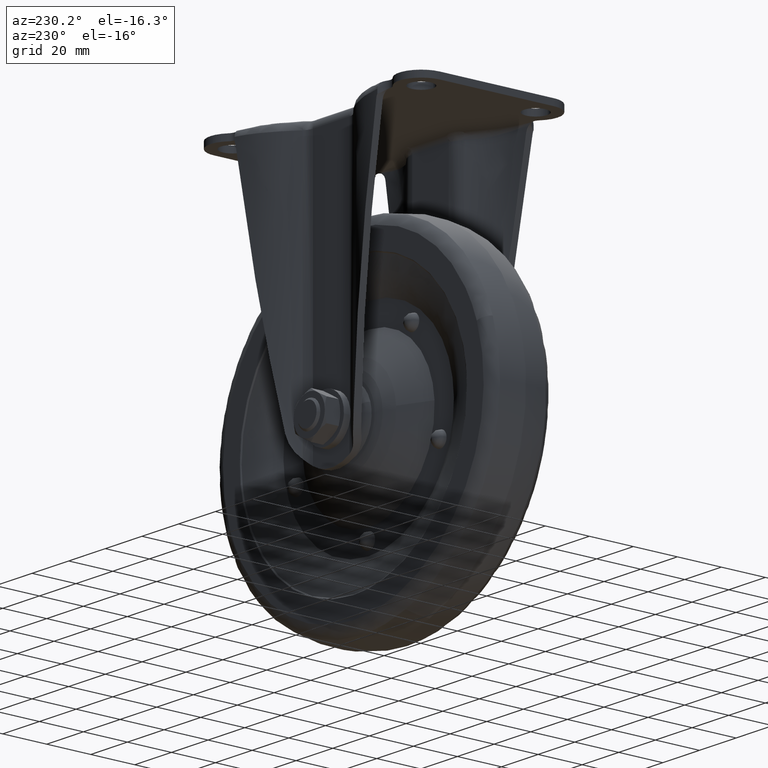
[diagram: clean part render]
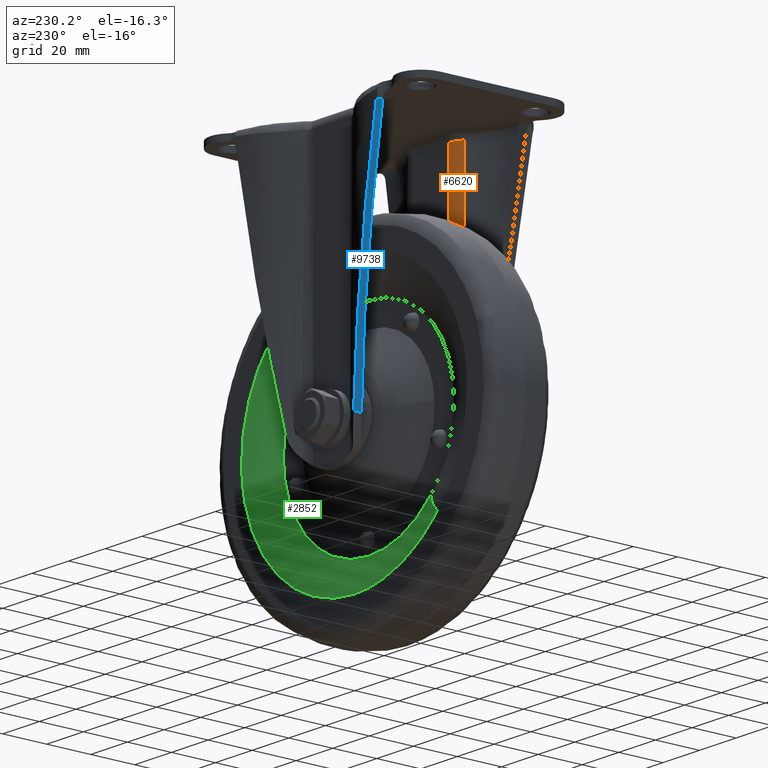
[diagram: same view with three faces highlighted in distinct colors, each labeled with its STEP entity id]
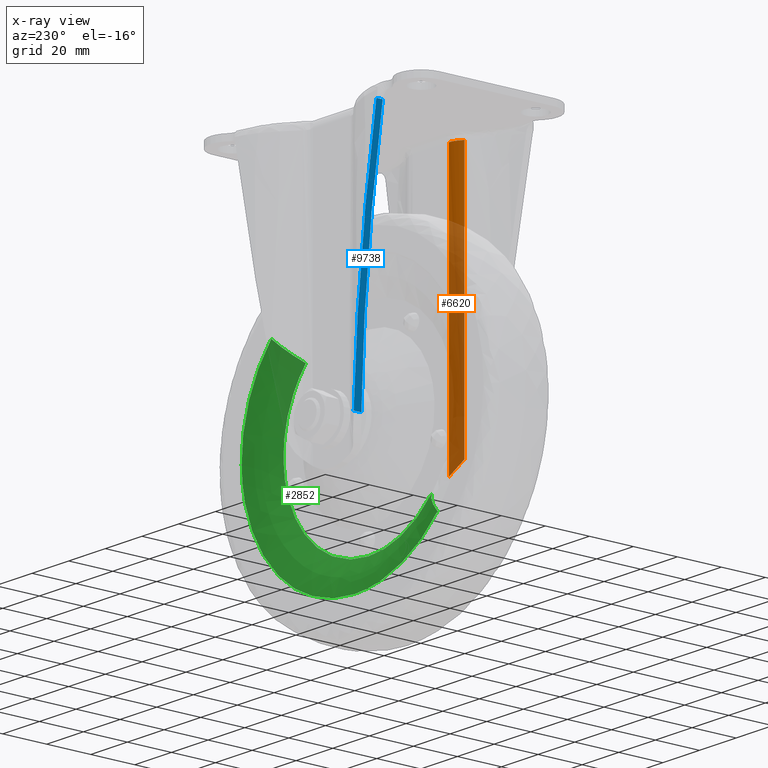
[diagram: x-ray of the same camera — body ghosted, the three highlighted faces saturated]
A machine part, auxiliary view with three faces highlighted in distinct colors.
The next image is the same camera in x-ray (body ghosted, the three faces saturated) — at least one of them is partly hidden behind the body in this view.
Their STEP definitions:

[orange] entity #6620 — the highlighted face is a freeform B-spline surface patch.
#5968=CARTESIAN_POINT('',(-15.730752651323749,-23.383727353487849,-5.400000000000000));
#5969=VERTEX_POINT('',#5968);
#6006=CARTESIAN_POINT('',(-15.730752576165401,-23.383727607327451,-121.655677797042600));
#6007=VERTEX_POINT('',#6006);
#6008=CARTESIAN_POINT('',(-15.730752576165401,-23.383727607327451,-121.655677797042600));
#6009=CARTESIAN_POINT('',(-15.730752651323749,-23.383727353487849,-5.400000000000000));
#6010=QUASI_UNIFORM_CURVE('',1,(#6008,#6009),.UNSPECIFIED.,.F.,.U.);
#6011=EDGE_CURVE('',#6007,#5969,#6010,.T.);
#6558=CARTESIAN_POINT('',(-15.950432896322864,-23.598235689040433,-130.216454620055860));
#6559=CARTESIAN_POINT('',(-15.950432896322864,-23.598235689040433,-2.279588634498594));
#6560=CARTESIAN_POINT('',(-13.355081251955649,-20.969627482459654,-130.216454620055800));
#6561=CARTESIAN_POINT('',(-13.355081251955649,-20.969627482459654,-2.279588634498594));
#6562=CARTESIAN_POINT('',(-9.663616063500623,-21.105701080369272,-130.216454620055880));
#6563=CARTESIAN_POINT('',(-9.663616063500623,-21.105701080369272,-2.279588634498595));
#6571=(BOUNDED_SURFACE()B_SPLINE_SURFACE(1,2,((#6558,#6560,#6562),(#6559,#6561,#6563)),.UNSPECIFIED.,.F.,.F.,.U.)B_SPLINE_SURFACE_WITH_KNOTS((2,2),(3,3),(0.0,127.936865985557300),(0.0,7.061585766682998),.UNSPECIFIED.)GEOMETRIC_REPRESENTATION_ITEM()RATIONAL_B_SPLINE_SURFACE(((0.999478271079634,0.911144849203632,0.991249598137306),(0.999478271079634,0.911144849203632,0.991249598137306)))REPRESENTATION_ITEM('')SURFACE());
#6572=ORIENTED_EDGE('',*,*,#6011,.T.);
#6573=CARTESIAN_POINT('',(-9.973044000000000,-21.100000000000001,-5.400000000000000));
#6574=VERTEX_POINT('',#6573);
#6575=CARTESIAN_POINT('',(-15.730752651323710,-23.383727353487899,-5.400000000000000));
#6576=CARTESIAN_POINT('',(-13.304805110366024,-21.100000000000005,-5.400000000000000));
#6577=CARTESIAN_POINT('',(-9.973044000000000,-21.100000000000001,-5.400000000000000));
#6585=(BOUNDED_CURVE()B_SPLINE_CURVE(2,(#6575,#6576,#6577),.UNSPECIFIED.,.F.,.U.)CURVE()GEOMETRIC_REPRESENTATION_ITEM()QUASI_UNIFORM_CURVE()RATIONAL_B_SPLINE_CURVE((1.0,0.929550347214541,1.0))REPRESENTATION_ITEM(''));
#6586=EDGE_CURVE('',#5969,#6574,#6585,.T.);
#6587=ORIENTED_EDGE('',*,*,#6586,.T.);
#6588=CARTESIAN_POINT('',(-9.973044000000000,-21.100000000000001,-127.172150848835000));
#6589=VERTEX_POINT('',#6588);
#6590=CARTESIAN_POINT('',(-9.973044000000000,-21.100000000000001,-127.172150848835000));
#6591=CARTESIAN_POINT('',(-9.973044000000000,-21.100000000000001,-5.400000000000000));
#6592=QUASI_UNIFORM_CURVE('',1,(#6590,#6591),.UNSPECIFIED.,.F.,.U.);
#6593=EDGE_CURVE('',#6589,#6574,#6592,.T.);
#6594=ORIENTED_EDGE('',*,*,#6593,.F.);
#6595=CARTESIAN_POINT('',(-15.730752576165401,-23.383727607327451,-121.655677797042600));
#6596=CARTESIAN_POINT('',(-15.385097794636330,-23.058336371754219,-122.165960778068100));
#6597=CARTESIAN_POINT('',(-15.006830068751309,-22.756902480422891,-122.671226277295200));
#6598=CARTESIAN_POINT('',(-14.486436982845451,-22.414464968759852,-123.295104629955600));
#6599=CARTESIAN_POINT('',(-14.379753223678520,-22.347595594189769,-123.419734631609900));
#6600=CARTESIAN_POINT('',(-14.162567131582520,-22.218250835393881,-123.666838769083800));
#6601=CARTESIAN_POINT('',(-14.052098780601590,-22.155780108026569,-123.789289542845000));
#6602=CARTESIAN_POINT('',(-13.714959247847441,-21.975168760885449,-124.153302156945600));
#6603=CARTESIAN_POINT('',(-13.482562441622040,-21.863809888763349,-124.391525942330500));
#6604=CARTESIAN_POINT('',(-13.001722343789041,-21.660661596990678,-124.858848262592600));
#6605=CARTESIAN_POINT('',(-12.753281954291230,-21.568866394565671,-125.087947531884100));
#6606=CARTESIAN_POINT('',(-12.239269196825770,-21.406989020951261,-125.536738208027600));
#6607=CARTESIAN_POINT('',(-11.973701656601961,-21.336896179575600,-125.756430407769400));
#6608=CARTESIAN_POINT('',(-11.561365444244700,-21.250335840154509,-126.078637889069500));
#6609=CARTESIAN_POINT('',(-11.421267556597490,-21.224549025055701,-126.185042472750690));
#6610=CARTESIAN_POINT('',(-11.138810799822080,-21.180058409037770,-126.393432442524700));
#6611=CARTESIAN_POINT('',(-10.996249217388661,-21.161295948457060,-126.495589703774200));
#6612=CARTESIAN_POINT('',(-10.564574542115400,-21.115858522055770,-126.795972719373000));
#6613=CARTESIAN_POINT('',(-10.271474947838289,-21.100000000000009,-126.988114390223100));
#6614=CARTESIAN_POINT('',(-9.973044000000067,-21.100000000000001,-127.172150848835100));
#6615=B_SPLINE_CURVE_WITH_KNOTS('',3,(#6595,#6596,#6597,#6598,#6599,#6600,#6601,#6602,#6603,#6604,#6605,#6606,#6607,#6608,#6609,#6610,#6611,#6612,#6613,#6614),.UNSPECIFIED.,.F.,.U.,(4,2,2,2,2,2,2,2,2,4),(0.0,0.250000000000003,0.312500000000004,0.375000000000004,0.500000000000006,0.625000000000007,0.750000000000008,0.812500000000006,0.875000000000004,1.0),.UNSPECIFIED.);
#6616=EDGE_CURVE('',#6007,#6589,#6615,.T.);
#6617=ORIENTED_EDGE('',*,*,#6616,.F.);
#6618=EDGE_LOOP('',(#6572,#6587,#6594,#6617));
#6619=FACE_OUTER_BOUND('',#6618,.T.);
#6620=ADVANCED_FACE('',(#6619),#6571,.T.);

[blue] entity #9738 — the highlighted face is a freeform B-spline surface patch.
#8208=CARTESIAN_POINT('',(-38.384969815767107,32.595007900842553,-6.183895033378120));
#8209=VERTEX_POINT('',#8208);
#8239=CARTESIAN_POINT('',(-18.693041682196601,25.869434690258650,-114.401500746498200));
#8240=VERTEX_POINT('',#8239);
#8241=CARTESIAN_POINT('',(-18.693041682196569,25.869434690258650,-114.401500746498500));
#8242=CARTESIAN_POINT('',(-27.454555737698033,32.407402208464397,-66.252326776488630));
#8243=CARTESIAN_POINT('',(-38.384969815767128,32.595007900842532,-6.183895033378124));
#8251=(BOUNDED_CURVE()B_SPLINE_CURVE(2,(#8241,#8242,#8243),.UNSPECIFIED.,.F.,.U.)CURVE()GEOMETRIC_REPRESENTATION_ITEM()QUASI_UNIFORM_CURVE()RATIONAL_B_SPLINE_CURVE((1.0,0.951735064180674,1.0))REPRESENTATION_ITEM(''));
#8252=EDGE_CURVE('',#8240,#8209,#8251,.T.);
#9686=CARTESIAN_POINT('',(-38.384969815767107,35.495401359037047,-6.183895033378071));
#9687=VERTEX_POINT('',#9686);
#9697=CARTESIAN_POINT('',(-38.384969815767107,32.595007900842553,-6.183895033378120));
#9698=CARTESIAN_POINT('',(-38.384969815767107,35.495401359037047,-6.183895033378071));
#9699=QUASI_UNIFORM_CURVE('',1,(#9697,#9698),.UNSPECIFIED.,.F.,.U.);
#9700=EDGE_CURVE('',#8209,#9687,#9699,.T.);
#9709=CARTESIAN_POINT('',(-39.368581587872249,25.388617673810160,-0.778425837754452));
#9710=CARTESIAN_POINT('',(-17.709429381912908,25.388617673810160,-119.806972844744190));
#9711=CARTESIAN_POINT('',(-39.368581587872249,35.976218633674087,-0.778425837754452));
#9712=CARTESIAN_POINT('',(-17.709429381912908,35.976218633674087,-119.806972844744190));
#9713=B_SPLINE_SURFACE_WITH_KNOTS('',1,1,((#9709,#9711),(#9710,#9712)),.UNSPECIFIED.,.F.,.F.,.U.,(2,2),(2,2),(0.0,120.983114015452900),(0.0,10.587600959863920),.UNSPECIFIED.);
#9714=ORIENTED_EDGE('',*,*,#8252,.T.);
#9715=ORIENTED_EDGE('',*,*,#9700,.T.);
#9716=CARTESIAN_POINT('',(-18.693041682196601,29.411709804403500,-114.401500746498200));
#9717=VERTEX_POINT('',#9716);
#9718=CARTESIAN_POINT('',(-18.693041682196551,29.411709804403500,-114.401500746498500));
#9719=CARTESIAN_POINT('',(-27.651675467620382,35.325700557248595,-65.169049147892821));
#9720=CARTESIAN_POINT('',(-38.384969815766567,35.495401359037047,-6.183895033381122));
#9728=(BOUNDED_CURVE()B_SPLINE_CURVE(2,(#9718,#9719,#9720),.UNSPECIFIED.,.F.,.U.)CURVE()GEOMETRIC_REPRESENTATION_ITEM()QUASI_UNIFORM_CURVE()RATIONAL_B_SPLINE_CURVE((1.0,0.959989373029331,1.0))REPRESENTATION_ITEM(''));
#9729=EDGE_CURVE('',#9717,#9687,#9728,.T.);
#9730=ORIENTED_EDGE('',*,*,#9729,.F.);
#9731=CARTESIAN_POINT('',(-18.693041682196601,29.411709804403500,-114.401500746498200));
#9732=CARTESIAN_POINT('',(-18.693041682196601,25.869434690258650,-114.401500746498200));
#9733=QUASI_UNIFORM_CURVE('',1,(#9731,#9732),.UNSPECIFIED.,.F.,.U.);
#9734=EDGE_CURVE('',#9717,#8240,#9733,.T.);
#9735=ORIENTED_EDGE('',*,*,#9734,.T.);
#9736=EDGE_LOOP('',(#9714,#9715,#9730,#9735));
#9737=FACE_OUTER_BOUND('',#9736,.T.);
#9738=ADVANCED_FACE('',(#9737),#9713,.F.);

[green] entity #2852 — the highlighted face is a freeform B-spline surface patch.
#2651=CARTESIAN_POINT('',(-34.294359957309823,7.000000000178677,-143.902975577795790));
#2652=VERTEX_POINT('',#2651);
#2653=CARTESIAN_POINT('',(0.0,7.000000000000003,-159.0));
#2654=VERTEX_POINT('',#2653);
#2655=CARTESIAN_POINT('',(-34.294359957309823,7.000000000178677,-143.902975577795840));
#2656=CARTESIAN_POINT('',(-20.470177502068495,7.000000000089341,-159.000000000076850));
#2657=CARTESIAN_POINT('',(0.0,7.000000000000003,-159.0));
#2665=(BOUNDED_CURVE()B_SPLINE_CURVE(2,(#2655,#2656,#2657),.UNSPECIFIED.,.F.,.U.)B_SPLINE_CURVE_WITH_KNOTS((3,3),(0.868362513836528,1.0),.UNSPECIFIED.)CURVE()GEOMETRIC_REPRESENTATION_ITEM()RATIONAL_B_SPLINE_CURVE((0.853966311196070,0.845777091844278,1.0))REPRESENTATION_ITEM(''));
#2666=EDGE_CURVE('',#2652,#2654,#2665,.T.);
#2685=CARTESIAN_POINT('',(34.294359957309837,7.000000000178684,-81.097024422204157));
#2686=VERTEX_POINT('',#2685);
#2700=CARTESIAN_POINT('',(0.0,7.000000000000003,-159.0));
#2701=CARTESIAN_POINT('',(46.500000000036977,7.000000000039331,-158.999999999966120));
#2702=CARTESIAN_POINT('',(46.500000000120949,7.000000000128672,-112.499999999889300));
#2703=CARTESIAN_POINT('',(46.500000000153584,7.000000000163396,-94.426481438230155));
#2704=CARTESIAN_POINT('',(34.294359957309851,7.000000000178684,-81.097024422204157));
#2712=(BOUNDED_CURVE()B_SPLINE_CURVE(2,(#2700,#2701,#2702,#2703,#2704),.UNSPECIFIED.,.F.,.U.)B_SPLINE_CURVE_WITH_KNOTS((3,2,3),(0.0,0.250000000000000,0.368362513836529),.UNSPECIFIED.)CURVE()GEOMETRIC_REPRESENTATION_ITEM()RATIONAL_B_SPLINE_CURVE((1.0,0.707106781186547,1.0,0.861329689342270,0.853966311196070))REPRESENTATION_ITEM(''));
#2713=EDGE_CURVE('',#2654,#2686,#2712,.T.);
#2744=CARTESIAN_POINT('',(-34.692071670262138,6.488766602507351,-142.528556681842530));
#2745=CARTESIAN_POINT('',(-34.261623896140669,6.488766602507350,-142.998637323467960));
#2746=CARTESIAN_POINT('',(-2.851907806980127,6.488766602507350,-177.300358415182730));
#2747=CARTESIAN_POINT('',(30.974225304101314,6.488766602507350,-146.326133111081420));
#2748=CARTESIAN_POINT('',(64.800358415182757,6.488766602507350,-115.351907806980150));
#2749=CARTESIAN_POINT('',(33.390642459810792,6.488766602507350,-81.050186861372239));
#2750=CARTESIAN_POINT('',(32.960194816388295,6.488766602507350,-80.580106362479725));
#2751=CARTESIAN_POINT('',(-40.130699509867938,12.430128997701994,-147.236091760903350));
#2752=CARTESIAN_POINT('',(-39.632771036695559,12.430128997701997,-147.779866291112260));
#2753=CARTESIAN_POINT('',(-3.298997428564380,12.430128997701999,-187.459020504980860));
#2754=CARTESIAN_POINT('',(35.830011538208197,12.430128997702001,-151.629008966772520));
#2755=CARTESIAN_POINT('',(74.959020504980757,12.430128997701999,-115.798997428564390));
#2756=CARTESIAN_POINT('',(38.625247051611986,12.430128997701992,-76.119843383707860));
#2757=CARTESIAN_POINT('',(38.127318729628094,12.430128997701997,-75.576069018607768));
#2758=CARTESIAN_POINT('',(-47.128795951165039,13.613661248727730,-153.293462380041630));
#2759=CARTESIAN_POINT('',(-46.544037407281557,13.613661248727741,-153.932061736411270));
#2760=CARTESIAN_POINT('',(-3.874285236817205,13.613661248727734,-200.530570740730700));
#2761=CARTESIAN_POINT('',(42.078142751956733,13.613661248727738,-158.452427988773910));
#2762=CARTESIAN_POINT('',(88.030570740730653,13.613661248727734,-116.374285236817240));
#2763=CARTESIAN_POINT('',(45.360818752016584,13.613661248727732,-69.775776430982475));
#2764=CARTESIAN_POINT('',(44.776060385686229,13.613661248727741,-69.137177268514009));
#2772=(BOUNDED_SURFACE()B_SPLINE_SURFACE(2,2,((#2744,#2751,#2758),(#2745,#2752,#2759),(#2746,#2753,#2760),(#2747,#2754,#2761),(#2748,#2755,#2762),(#2749,#2756,#2763),(#2750,#2757,#2764)),.UNSPECIFIED.,.F.,.F.,.U.)B_SPLINE_SURFACE_WITH_KNOTS((3,1,2,1,3),(3,3),(0.0,2.064681903530312,105.298744858802390,208.532807814074400,210.597489079591300),(0.0,18.285692054926429),.UNSPECIFIED.)GEOMETRIC_REPRESENTATION_ITEM()RATIONAL_B_SPLINE_SURFACE(((0.955568791154922,0.917846182929319,0.955433572999884),(0.950036017522389,0.912531824395806,0.949901582284761),(0.667864648607209,0.641499622122104,0.667770142145262),(0.944503243889857,0.907217465862294,0.944369591569639),(0.667864648607209,0.641499622122104,0.667770142145262),(0.950036015812691,0.912531822753601,0.949901580575305),(0.955568787735525,0.917846179644907,0.955433569580971)))REPRESENTATION_ITEM('')SURFACE());
#2773=CARTESIAN_POINT('',(-45.357057437848063,13.500000075245589,-154.032967630166010));
#2774=VERTEX_POINT('',#2773);
#2775=CARTESIAN_POINT('',(0.0,13.500000000000060,-174.0));
#2776=VERTEX_POINT('',#2775);
#2777=CARTESIAN_POINT('',(-45.357057437848063,13.500000075245589,-154.032967630165960));
#2778=CARTESIAN_POINT('',(-27.073461066665139,13.500000037487686,-174.000000163586150));
#2779=CARTESIAN_POINT('',(0.0,13.500000000000060,-174.0));
#2787=(BOUNDED_CURVE()B_SPLINE_CURVE(2,(#2777,#2778,#2779),.UNSPECIFIED.,.F.,.U.)B_SPLINE_CURVE_WITH_KNOTS((3,3),(0.868362512516968,1.0),.UNSPECIFIED.)CURVE()GEOMETRIC_REPRESENTATION_ITEM()RATIONAL_B_SPLINE_CURVE((0.853966311360250,0.845777090298317,1.0))REPRESENTATION_ITEM(''));
#2788=EDGE_CURVE('',#2774,#2776,#2787,.T.);
#2789=ORIENTED_EDGE('',*,*,#2788,.F.);
#2790=CARTESIAN_POINT('',(-34.294359957309823,7.000000000178677,-143.902975577795900));
#2791=CARTESIAN_POINT('',(-39.197348860109550,12.216149736622032,-148.392589277129870));
#2792=CARTESIAN_POINT('',(-45.357057437848056,13.500000075245588,-154.032967630165980));
#2800=(BOUNDED_CURVE()B_SPLINE_CURVE(2,(#2790,#2791,#2792),.UNSPECIFIED.,.F.,.U.)B_SPLINE_CURVE_WITH_KNOTS((3,3),(-1.456296752249647,-0.545501878189768),.UNSPECIFIED.)CURVE()GEOMETRIC_REPRESENTATION_ITEM()RATIONAL_B_SPLINE_CURVE((0.941270223908635,0.910444414260450,0.941148714738825))REPRESENTATION_ITEM(''));
#2801=EDGE_CURVE('',#2652,#2774,#2800,.T.);
#2802=ORIENTED_EDGE('',*,*,#2801,.F.);
#2803=ORIENTED_EDGE('',*,*,#2666,.T.);
#2804=ORIENTED_EDGE('',*,*,#2713,.T.);
#2805=CARTESIAN_POINT('',(45.357057437848020,13.500000075245570,-70.967032369834030));
#2806=VERTEX_POINT('',#2805);
#2807=CARTESIAN_POINT('',(34.294359957309844,7.000000000178683,-81.097024422204157));
#2808=CARTESIAN_POINT('',(39.197348860109564,12.216149736622006,-76.607410722870085));
#2809=CARTESIAN_POINT('',(45.357057437848020,13.500000075245566,-70.967032369834016));
#2817=(BOUNDED_CURVE()B_SPLINE_CURVE(2,(#2807,#2808,#2809),.UNSPECIFIED.,.F.,.U.)B_SPLINE_CURVE_WITH_KNOTS((3,3),(-1.456296752249645,-0.545501878189770),.UNSPECIFIED.)CURVE()GEOMETRIC_REPRESENTATION_ITEM()RATIONAL_B_SPLINE_CURVE((0.941270223908635,0.910444414260451,0.941148714738825))REPRESENTATION_ITEM(''));
#2818=EDGE_CURVE('',#2686,#2806,#2817,.T.);
#2819=ORIENTED_EDGE('',*,*,#2818,.T.);
#2820=CARTESIAN_POINT('',(61.495144218534193,13.500000002945370,-113.272811452865800));
#2821=VERTEX_POINT('',#2820);
#2822=CARTESIAN_POINT('',(61.495144218534186,13.500000002945379,-113.272811452865810));
#2823=CARTESIAN_POINT('',(61.500000002835080,13.500000003521000,-112.886420978924950));
#2824=CARTESIAN_POINT('',(61.500000005684058,13.500000004099361,-112.499999994795200));
#2825=CARTESIAN_POINT('',(61.500000181919418,13.500000039876769,-88.596314303237293));
#2826=CARTESIAN_POINT('',(45.357057437848020,13.500000075245568,-70.967032369834030));
#2834=(BOUNDED_CURVE()B_SPLINE_CURVE(2,(#2822,#2823,#2824,#2825,#2826),.UNSPECIFIED.,.F.,.U.)B_SPLINE_CURVE_WITH_KNOTS((3,2,3),(0.247784295921615,0.250000000000000,0.368362512516968),.UNSPECIFIED.)CURVE()GEOMETRIC_REPRESENTATION_ITEM()RATIONAL_B_SPLINE_CURVE((0.994854295643752,0.997404141202175,1.0,0.861329690888231,0.853966311360250))REPRESENTATION_ITEM(''));
#2835=EDGE_CURVE('',#2821,#2806,#2834,.T.);
#2836=ORIENTED_EDGE('',*,*,#2835,.F.);
#2837=CARTESIAN_POINT('',(0.0,13.500000000000060,-174.0));
#2838=CARTESIAN_POINT('',(60.731983689260709,13.500000001472717,-174.000000000000060));
#2839=CARTESIAN_POINT('',(61.495144218534186,13.500000002945379,-113.272811452865810));
#2847=(BOUNDED_CURVE()B_SPLINE_CURVE(2,(#2837,#2838,#2839),.UNSPECIFIED.,.F.,.U.)B_SPLINE_CURVE_WITH_KNOTS((3,3),(0.0,0.247784295921615),.UNSPECIFIED.)CURVE()GEOMETRIC_REPRESENTATION_ITEM()RATIONAL_B_SPLINE_CURVE((1.0,0.709702639984373,0.994854295643752))REPRESENTATION_ITEM(''));
#2848=EDGE_CURVE('',#2776,#2821,#2847,.T.);
#2849=ORIENTED_EDGE('',*,*,#2848,.F.);
#2850=EDGE_LOOP('',(#2789,#2802,#2803,#2804,#2819,#2836,#2849));
#2851=FACE_OUTER_BOUND('',#2850,.T.);
#2852=ADVANCED_FACE('',(#2851),#2772,.T.);